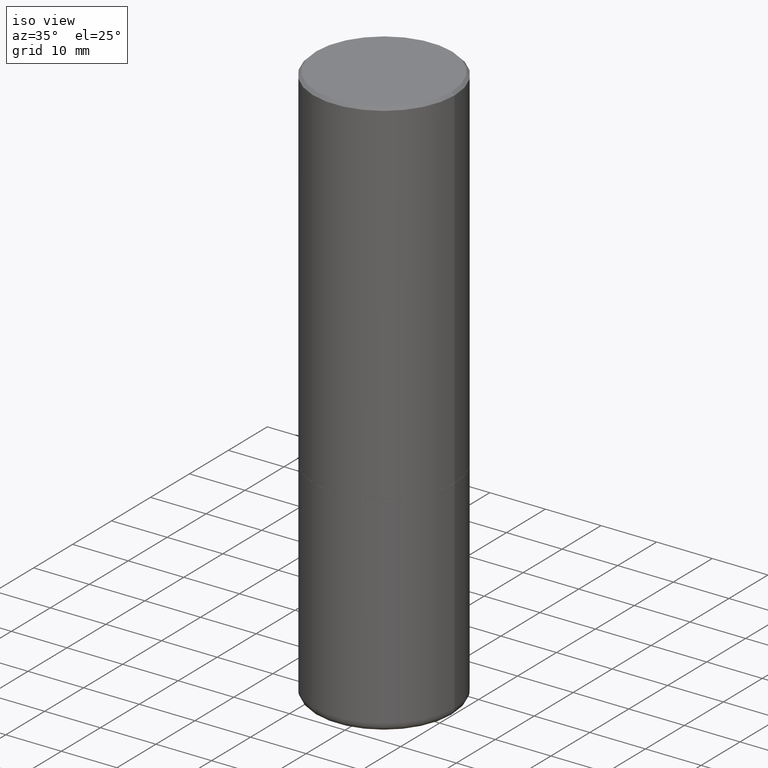
[diagram: clean part render]
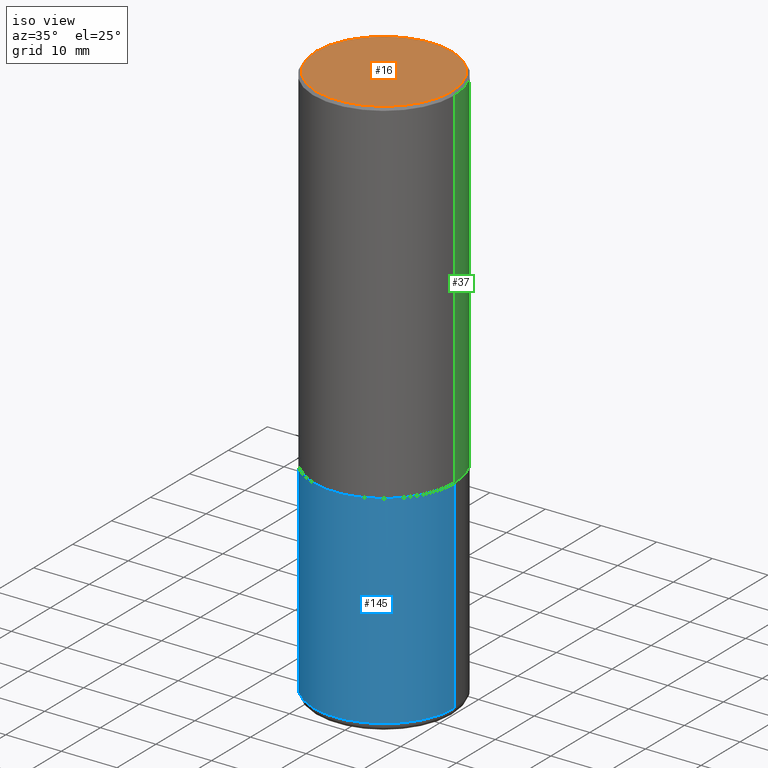
[diagram: same view with three faces highlighted in distinct colors, each labeled with its STEP entity id]
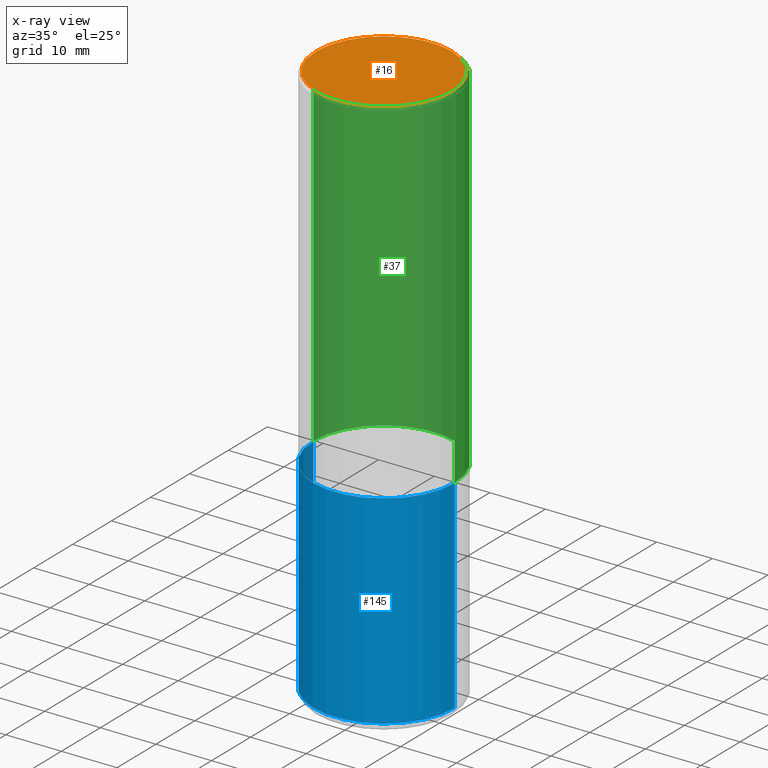
[diagram: x-ray of the same camera — body ghosted, the three highlighted faces saturated]
A machine part, iso view with three faces highlighted in distinct colors.
The next image is the same camera in x-ray (body ghosted, the three faces saturated) — at least one of them is partly hidden behind the body in this view.
Their STEP definitions:

[orange] entity #16 — the highlighted planar face has unit normal (0, -0, -1).
#8 = AXIS2_PLACEMENT_3D ( 'NONE', #96, #296, #367 ) ;
#16 = ADVANCED_FACE ( 'NONE', ( #394 ), #360, .F. ) ;
#40 = DIRECTION ( 'NONE',  ( 2.438088387897960049E-29, -3.491481338843145188E-15, -1.000000000000000000 ) ) ;
#74 = VERTEX_POINT ( 'NONE', #362 ) ;
#89 = CARTESIAN_POINT ( 'NONE',  ( 3.351822085289405181E-15, 0.4799999999999996492, -1.669508273909558064E-15 ) ) ;
#90 = DIRECTION ( 'NONE',  ( -2.445468806185136597E-29, 3.491481338843145583E-15, 1.000000000000000000 ) ) ;
#96 = CARTESIAN_POINT ( 'NONE',  ( -3.131554243005659264E-46, 4.471029511141341874E-32, 1.280553747030123384E-17 ) ) ;
#97 = CIRCLE ( 'NONE', #8, 0.4799999999999996492 ) ;
#115 = CARTESIAN_POINT ( 'NONE',  ( -0.4799999999999996492, 3.386736898677836830E-15, 1.280553747027767124E-17 ) ) ;
#117 = VERTEX_POINT ( 'NONE', #115 ) ;
#132 = AXIS2_PLACEMENT_3D ( 'NONE', #89, #40, #342 ) ;
#163 = DIRECTION ( 'NONE',  ( 1.000000000000000000, -6.982962677686267499E-15, 4.876036955247132767E-29 ) ) ;
#200 = CIRCLE ( 'NONE', #340, 0.4799999999999996492 ) ;
#217 = ORIENTED_EDGE ( 'NONE', *, *, #412, .T. ) ;
#257 = EDGE_LOOP ( 'NONE', ( #282, #217 ) ) ;
#282 = ORIENTED_EDGE ( 'NONE', *, *, #329, .T. ) ;
#296 = DIRECTION ( 'NONE',  ( -2.445468806185136597E-29, 3.491481338843145583E-15, 1.000000000000000000 ) ) ;
#329 = EDGE_CURVE ( 'NONE', #117, #74, #97, .T. ) ;
#340 = AXIS2_PLACEMENT_3D ( 'NONE', #431, #90, #163 ) ;
#342 = DIRECTION ( 'NONE',  ( -1.000000000000000000, 6.982962677686265922E-15, -4.876176775795935793E-29 ) ) ;
#360 = PLANE ( 'NONE',  #132 ) ;
#362 = CARTESIAN_POINT ( 'NONE',  ( 0.4799999999999996492, -3.396558832296480127E-15, 1.280553747032483033E-17 ) ) ;
#367 = DIRECTION ( 'NONE',  ( 1.000000000000000000, -6.982962677686267499E-15, 4.876036955247132767E-29 ) ) ;
#394 = FACE_OUTER_BOUND ( 'NONE', #257, .T. ) ;
#412 = EDGE_CURVE ( 'NONE', #74, #117, #200, .T. ) ;
#431 = CARTESIAN_POINT ( 'NONE',  ( -3.131554243005659264E-46, 4.471029511141341874E-32, 1.280553747030123384E-17 ) ) ;

[blue] entity #145 — the highlighted cylindrical surface (partial cylindrical patch) has radius 12.7 mm, axis along (-0, 0, 1).
#11 = DIRECTION ( 'NONE',  ( -2.445468806185136597E-29, 3.491481338843145583E-15, 1.000000000000000000 ) ) ;
#18 = VECTOR ( 'NONE', #23, 39.37007874015748143 ) ;
#23 = DIRECTION ( 'NONE',  ( -2.445468806185136877E-29, 3.491481338843145188E-15, 1.000000000000000000 ) ) ;
#32 = CIRCLE ( 'NONE', #138, 0.5000000000000000000 ) ;
#48 = CIRCLE ( 'NONE', #245, 0.4999999999999997780 ) ;
#61 = CARTESIAN_POINT ( 'NONE',  ( 0.5000000000000000000, -1.222018468595099830E-14, -2.500000000000000000 ) ) ;
#65 = CARTESIAN_POINT ( 'NONE',  ( 9.635147096369438236E-29, -1.375643647504199401E-14, -3.939999999999999947 ) ) ;
#77 = CARTESIAN_POINT ( 'NONE',  ( -0.4999999999999998335, 3.552713678800499746E-15, -2.459467545127452330E-29 ) ) ;
#79 = EDGE_CURVE ( 'NONE', #187, #315, #32, .T. ) ;
#98 = DIRECTION ( 'NONE',  ( 1.000000000000000000, -6.982962677686265922E-15, 0.000000000000000000 ) ) ;
#101 = EDGE_CURVE ( 'NONE', #280, #315, #353, .T. ) ;
#102 = EDGE_LOOP ( 'NONE', ( #383, #371, #171, #214 ) ) ;
#112 = CARTESIAN_POINT ( 'NONE',  ( -0.5000000000000000000, -7.689856232274430126E-15, -2.500000000000000000 ) ) ;
#119 = VERTEX_POINT ( 'NONE', #425 ) ;
#121 = CARTESIAN_POINT ( 'NONE',  ( 6.113672015462842613E-29, -8.728703347107864943E-15, -2.500000000000000000 ) ) ;
#124 = CARTESIAN_POINT ( 'NONE',  ( 0.4999999999999998335, -3.491481338843132566E-15, 2.438088387897967336E-29 ) ) ;
#138 = AXIS2_PLACEMENT_3D ( 'NONE', #121, #11, #256 ) ;
#143 = DIRECTION ( 'NONE',  ( -2.445468806185136877E-29, 3.491481338843145188E-15, 1.000000000000000000 ) ) ;
#145 = ADVANCED_FACE ( 'NONE', ( #396 ), #216, .T. ) ;
#165 = DIRECTION ( 'NONE',  ( -2.445468806185136597E-29, 3.491481338843145583E-15, 1.000000000000000000 ) ) ;
#171 = ORIENTED_EDGE ( 'NONE', *, *, #101, .T. ) ;
#187 = VERTEX_POINT ( 'NONE', #112 ) ;
#214 = ORIENTED_EDGE ( 'NONE', *, *, #79, .F. ) ;
#216 = CYLINDRICAL_SURFACE ( 'NONE', #254, 0.4999999999999998335 ) ;
#235 = EDGE_CURVE ( 'NONE', #119, #187, #381, .T. ) ;
#239 = VECTOR ( 'NONE', #143, 39.37007874015748143 ) ;
#245 = AXIS2_PLACEMENT_3D ( 'NONE', #65, #165, #98 ) ;
#254 = AXIS2_PLACEMENT_3D ( 'NONE', #350, #429, #316 ) ;
#256 = DIRECTION ( 'NONE',  ( 1.000000000000000000, -6.982962677686269077E-15, 0.000000000000000000 ) ) ;
#265 = CARTESIAN_POINT ( 'NONE',  ( 0.4999999999999997780, -1.724791781388512421E-14, -3.939999999999999947 ) ) ;
#280 = VERTEX_POINT ( 'NONE', #265 ) ;
#315 = VERTEX_POINT ( 'NONE', #61 ) ;
#316 = DIRECTION ( 'NONE',  ( 1.000000000000000000, -6.982962677686267499E-15, 4.876176775795936353E-29 ) ) ;
#350 = CARTESIAN_POINT ( 'NONE',  ( 0.000000000000000000, 0.000000000000000000, 0.000000000000000000 ) ) ;
#353 = LINE ( 'NONE', #124, #18 ) ;
#371 = ORIENTED_EDGE ( 'NONE', *, *, #372, .T. ) ;
#372 = EDGE_CURVE ( 'NONE', #119, #280, #48, .T. ) ;
#381 = LINE ( 'NONE', #77, #239 ) ;
#383 = ORIENTED_EDGE ( 'NONE', *, *, #235, .F. ) ;
#396 = FACE_OUTER_BOUND ( 'NONE', #102, .T. ) ;
#425 = CARTESIAN_POINT ( 'NONE',  ( -0.4999999999999997780, -1.020372279624149466E-14, -3.939999999999999947 ) ) ;
#429 = DIRECTION ( 'NONE',  ( -2.445468806185136597E-29, 3.491481338843145583E-15, 1.000000000000000000 ) ) ;

[green] entity #37 — the highlighted cylindrical surface (partial cylindrical patch) has radius 12.7 mm, axis along (-0, 0, 1).
#6 = AXIS2_PLACEMENT_3D ( 'NONE', #339, #144, #379 ) ;
#19 = DIRECTION ( 'NONE',  ( -2.445468806185136597E-29, 3.491481338843145583E-15, 1.000000000000000000 ) ) ;
#37 = ADVANCED_FACE ( 'NONE', ( #141 ), #302, .T. ) ;
#47 = VERTEX_POINT ( 'NONE', #275 ) ;
#49 = EDGE_CURVE ( 'NONE', #390, #317, #178, .T. ) ;
#66 = CARTESIAN_POINT ( 'NONE',  ( -0.4999999999999997224, 3.421651712066268085E-15, -0.02000000000000011144 ) ) ;
#82 = CARTESIAN_POINT ( 'NONE',  ( 0.5000000000000000000, -1.221669320461215371E-14, -2.499000000000000110 ) ) ;
#88 = EDGE_CURVE ( 'NONE', #47, #317, #333, .T. ) ;
#103 = CARTESIAN_POINT ( 'NONE',  ( -0.4999999999999998335, 3.552713678800499746E-15, -2.459467545127452330E-29 ) ) ;
#136 = VERTEX_POINT ( 'NONE', #82 ) ;
#141 = FACE_OUTER_BOUND ( 'NONE', #356, .T. ) ;
#144 = DIRECTION ( 'NONE',  ( -2.445468806185136597E-29, 3.491481338843145583E-15, 1.000000000000000000 ) ) ;
#169 = ORIENTED_EDGE ( 'NONE', *, *, #325, .F. ) ;
#175 = DIRECTION ( 'NONE',  ( -2.445468806185136877E-29, 3.491481338843145188E-15, 1.000000000000000000 ) ) ;
#178 = LINE ( 'NONE', #103, #291 ) ;
#186 = AXIS2_PLACEMENT_3D ( 'NONE', #249, #248, #209 ) ;
#193 = EDGE_CURVE ( 'NONE', #136, #390, #404, .T. ) ;
#194 = CARTESIAN_POINT ( 'NONE',  ( 0.4999999999999998335, -3.491481338843132566E-15, 2.438088387897967336E-29 ) ) ;
#196 = LINE ( 'NONE', #194, #358 ) ;
#209 = DIRECTION ( 'NONE',  ( 1.000000000000000000, -6.982962677686265133E-15, 0.000000000000000000 ) ) ;
#233 = DIRECTION ( 'NONE',  ( -2.445468806185136877E-29, 3.491481338843145188E-15, 1.000000000000000000 ) ) ;
#248 = DIRECTION ( 'NONE',  ( -2.445468806185136597E-29, 3.491481338843145583E-15, 1.000000000000000000 ) ) ;
#249 = CARTESIAN_POINT ( 'NONE',  ( 6.111226546656657010E-29, -8.725211865769021935E-15, -2.499000000000000110 ) ) ;
#268 = CARTESIAN_POINT ( 'NONE',  ( -0.5000000000000000000, -8.448070674724411945E-16, -2.499000000000000110 ) ) ;
#272 = ORIENTED_EDGE ( 'NONE', *, *, #88, .F. ) ;
#275 = CARTESIAN_POINT ( 'NONE',  ( 0.4999999999999997224, -3.500078625662627502E-15, -0.02000000000000011144 ) ) ;
#281 = DIRECTION ( 'NONE',  ( 1.000000000000000000, -6.982962677686266711E-15, 0.000000000000000000 ) ) ;
#291 = VECTOR ( 'NONE', #175, 39.37007874015748143 ) ;
#302 = CYLINDRICAL_SURFACE ( 'NONE', #6, 0.4999999999999998335 ) ;
#317 = VERTEX_POINT ( 'NONE', #66 ) ;
#325 = EDGE_CURVE ( 'NONE', #136, #47, #196, .T. ) ;
#333 = CIRCLE ( 'NONE', #385, 0.4999999999999997224 ) ;
#339 = CARTESIAN_POINT ( 'NONE',  ( 0.000000000000000000, 0.000000000000000000, 0.000000000000000000 ) ) ;
#356 = EDGE_LOOP ( 'NONE', ( #421, #427, #272, #169 ) ) ;
#358 = VECTOR ( 'NONE', #233, 39.37007874015748143 ) ;
#379 = DIRECTION ( 'NONE',  ( 1.000000000000000000, -6.982962677686267499E-15, 4.876176775795936353E-29 ) ) ;
#385 = AXIS2_PLACEMENT_3D ( 'NONE', #422, #19, #281 ) ;
#390 = VERTEX_POINT ( 'NONE', #268 ) ;
#404 = CIRCLE ( 'NONE', #186, 0.5000000000000000000 ) ;
#421 = ORIENTED_EDGE ( 'NONE', *, *, #193, .T. ) ;
#422 = CARTESIAN_POINT ( 'NONE',  ( 4.890937612370301184E-31, -6.982962677686329819E-17, -0.02000000000000011144 ) ) ;
#427 = ORIENTED_EDGE ( 'NONE', *, *, #49, .T. ) ;